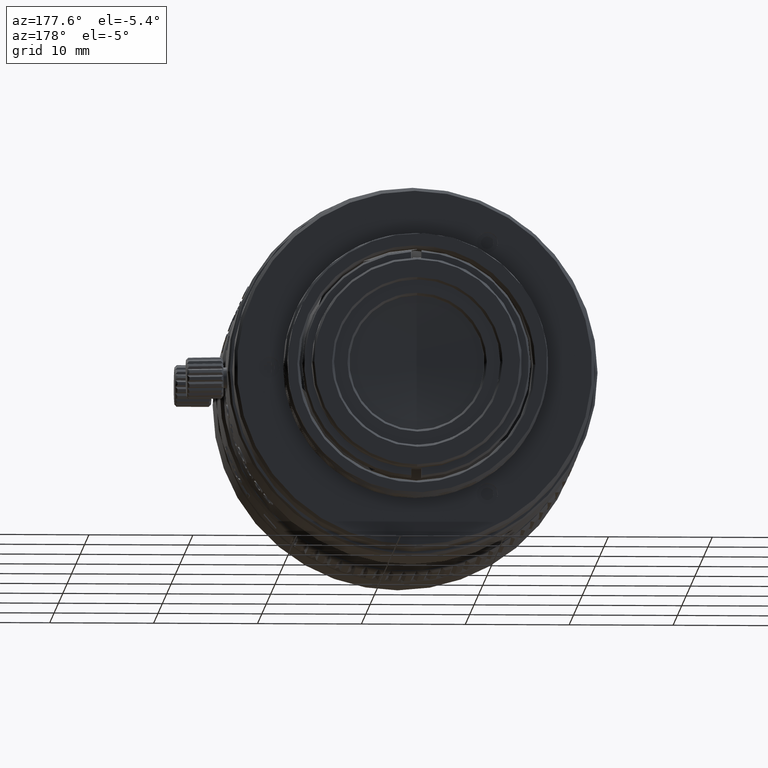
[diagram: clean part render]
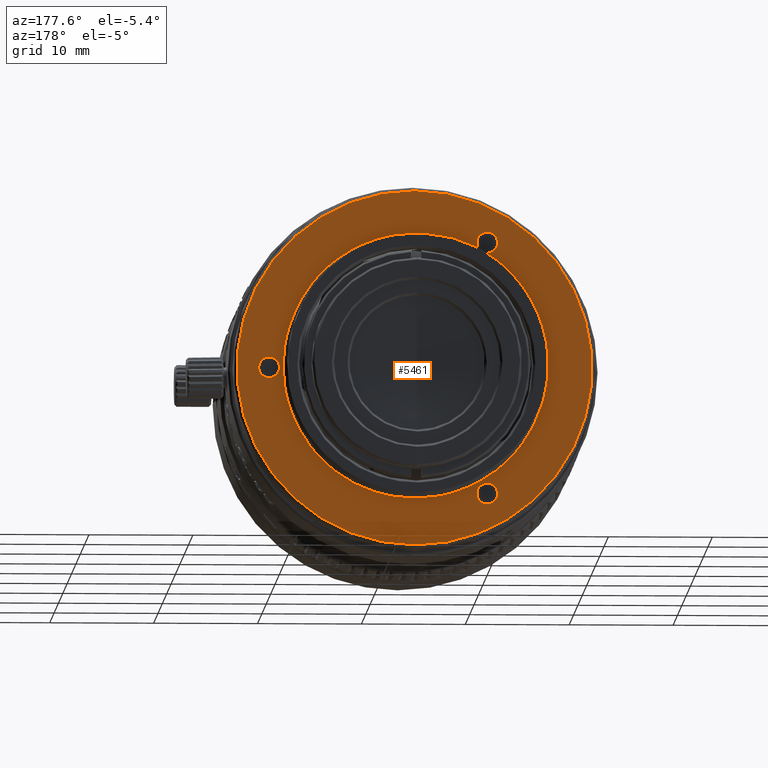
[diagram: same view with one face highlighted and labeled with its STEP entity id]
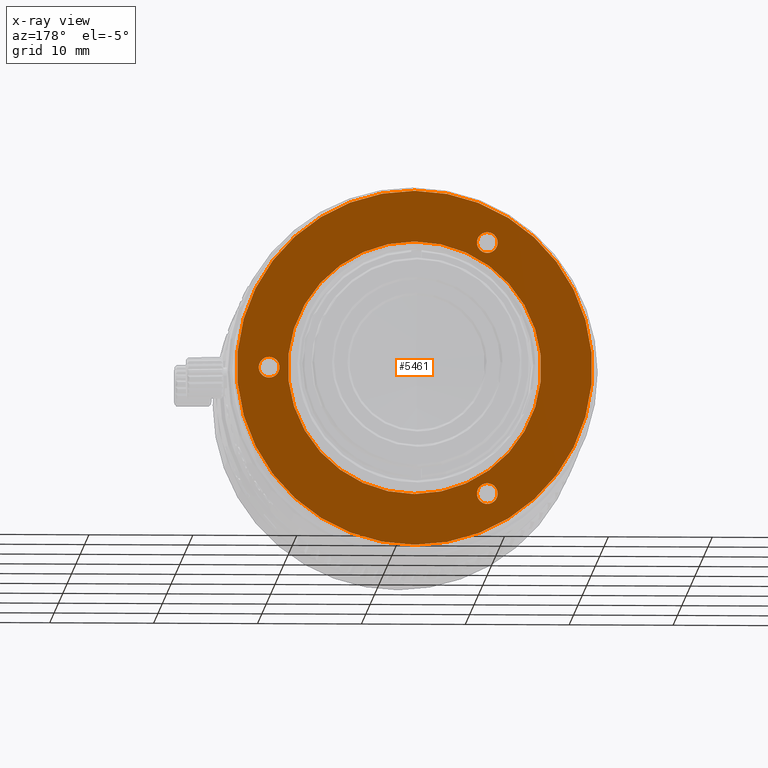
[diagram: x-ray of the same camera — body ghosted, the highlighted face saturated]
A machine part, auxiliary view. The second image highlights one B-rep face of the part: STEP entity #5461.
The next image is the same camera in x-ray: the body ghosted, the highlighted face saturated — about 0% of this face is hidden behind the body in this view.
In plain terms, the highlighted planar face has unit normal (-0, 1, 0).
Its self-contained STEP definition (entity closure, byte-faithful):
#207 = EDGE_LOOP ( 'NONE', ( #8205, #17840 ) ) ;
#568 = EDGE_CURVE ( 'NONE', #57915, #34554, #54980, .T. ) ;
#1448 = EDGE_CURVE ( 'NONE', #31349, #3882, #62458, .T. ) ;
#1925 = AXIS2_PLACEMENT_3D ( 'NONE', #9974, #37063, #58815 ) ;
#2626 = AXIS2_PLACEMENT_3D ( 'NONE', #6931, #23683, #29745 ) ;
#2935 = EDGE_CURVE ( 'NONE', #32318, #60528, #62080, .T. ) ;
#3882 = VERTEX_POINT ( 'NONE', #52392 ) ;
#4980 = FACE_BOUND ( 'NONE', #19485, .T. ) ;
#5202 = CIRCLE ( 'NONE', #62166, 17.09999737999697800 ) ;
#5461 = ADVANCED_FACE ( 'NONE', ( #39079, #4980, #23371, #15349, #64877 ), #64186, .T. ) ;
#5493 = EDGE_CURVE ( 'NONE', #9128, #59150, #18977, .T. ) ;
#6601 = ORIENTED_EDGE ( 'NONE', *, *, #62079, .T. ) ;
#6868 = CARTESIAN_POINT ( 'NONE',  ( 31.50001204310000347, 22.46401194791353007, -17.50001170252000193 ) ) ;
#6931 = CARTESIAN_POINT ( 'NONE',  ( 10.50001204309999991, 22.46401194791475220, -5.375656049534000225 ) ) ;
#7116 = ORIENTED_EDGE ( 'NONE', *, *, #50213, .T. ) ;
#7926 = DIRECTION ( 'NONE',  ( 0.000000000000000000, 0.000000000000000000, 1.000000000000000000 ) ) ;
#8205 = ORIENTED_EDGE ( 'NONE', *, *, #59036, .T. ) ;
#9128 = VERTEX_POINT ( 'NONE', #57183 ) ;
#9974 = CARTESIAN_POINT ( 'NONE',  ( -0.2962999720437000106, 22.46401194790999867, 0.2839882974833999318 ) ) ;
#11034 = AXIS2_PLACEMENT_3D ( 'NONE', #64528, #66534, #15699 ) ;
#12989 = CARTESIAN_POINT ( 'NONE',  ( 17.50001204309999991, 22.46401194790999867, -17.50001170252000193 ) ) ;
#13168 = EDGE_LOOP ( 'NONE', ( #6601, #25801 ) ) ;
#13698 = DIRECTION ( 'NONE',  ( 0.000000000000000000, 0.000000000000000000, -1.000000000000000000 ) ) ;
#15349 = FACE_BOUND ( 'NONE', #13168, .T. ) ;
#15699 = DIRECTION ( 'NONE',  ( 0.000000000000000000, 0.000000000000000000, 1.000000000000000000 ) ) ;
#17419 = CIRCLE ( 'NONE', #48162, 17.09999737999697800 ) ;
#17557 = AXIS2_PLACEMENT_3D ( 'NONE', #6868, #66762, #7926 ) ;
#17712 = DIRECTION ( 'NONE',  ( 0.000000000000000000, 0.000000000000000000, 1.000000000000000000 ) ) ;
#17840 = ORIENTED_EDGE ( 'NONE', *, *, #41626, .T. ) ;
#18977 = CIRCLE ( 'NONE', #11034, 1.000000000004819922 ) ;
#19485 = EDGE_LOOP ( 'NONE', ( #58531, #7116 ) ) ;
#23371 = FACE_BOUND ( 'NONE', #53404, .T. ) ;
#23683 = DIRECTION ( 'NONE',  ( -0.000000000000000000, -1.000000000000000000, -0.000000000000000000 ) ) ;
#24082 = DIRECTION ( 'NONE',  ( 0.000000000000000000, 0.000000000000000000, 1.000000000000000000 ) ) ;
#25769 = CARTESIAN_POINT ( 'NONE',  ( 10.50001204309999991, 22.46401194791475220, -30.62436735550481970 ) ) ;
#25801 = ORIENTED_EDGE ( 'NONE', *, *, #568, .T. ) ;
#27400 = DIRECTION ( 'NONE',  ( 0.000000000000000000, 0.000000000000000000, 1.000000000000000000 ) ) ;
#28323 = AXIS2_PLACEMENT_3D ( 'NONE', #43126, #70542, #27400 ) ;
#29745 = DIRECTION ( 'NONE',  ( 0.000000000000000000, 0.000000000000000000, 1.000000000000000000 ) ) ;
#30080 = AXIS2_PLACEMENT_3D ( 'NONE', #30814, #51869, #52566 ) ;
#30177 = DIRECTION ( 'NONE',  ( 0.000000000000000000, 0.000000000000000000, -1.000000000000000000 ) ) ;
#30814 = CARTESIAN_POINT ( 'NONE',  ( 10.50001204309999991, 22.46401194791475220, -29.62436735549999867 ) ) ;
#31244 = CARTESIAN_POINT ( 'NONE',  ( 17.50001204309999991, 22.46401194790999867, -17.50001170252000193 ) ) ;
#31349 = VERTEX_POINT ( 'NONE', #45286 ) ;
#31644 = DIRECTION ( 'NONE',  ( -0.000000000000000000, -1.000000000000000000, -0.000000000000000000 ) ) ;
#32318 = VERTEX_POINT ( 'NONE', #63743 ) ;
#34554 = VERTEX_POINT ( 'NONE', #43725 ) ;
#36525 = AXIS2_PLACEMENT_3D ( 'NONE', #39779, #51198, #24082 ) ;
#37063 = DIRECTION ( 'NONE',  ( -0.000000000000000000, 1.000000000000000000, 0.000000000000000000 ) ) ;
#37362 = ORIENTED_EDGE ( 'NONE', *, *, #1448, .T. ) ;
#39079 = FACE_OUTER_BOUND ( 'NONE', #207, .T. ) ;
#39680 = CIRCLE ( 'NONE', #28323, 1.000000000000486722 ) ;
#39779 = CARTESIAN_POINT ( 'NONE',  ( 17.50001204309999991, 22.46401194791493694, -17.50001170252000193 ) ) ;
#40118 = ORIENTED_EDGE ( 'NONE', *, *, #5493, .T. ) ;
#40783 = DIRECTION ( 'NONE',  ( -0.000000000000000000, 1.000000000000000000, -0.000000000000000000 ) ) ;
#41626 = EDGE_CURVE ( 'NONE', #50954, #57573, #5202, .T. ) ;
#42293 = DIRECTION ( 'NONE',  ( -0.000000000000000000, 1.000000000000000000, -0.000000000000000000 ) ) ;
#42597 = CARTESIAN_POINT ( 'NONE',  ( 17.50001204310000347, 22.46401194790999867, -0.4000143225230262667 ) ) ;
#43119 = AXIS2_PLACEMENT_3D ( 'NONE', #54084, #31644, #53043 ) ;
#43126 = CARTESIAN_POINT ( 'NONE',  ( 10.50001204309999991, 22.46401194791475220, -5.375656049534000225 ) ) ;
#43725 = CARTESIAN_POINT ( 'NONE',  ( 10.50001204309999991, 22.46401194791475220, -4.375656049533513503 ) ) ;
#44275 = ORIENTED_EDGE ( 'NONE', *, *, #66290, .T. ) ;
#44807 = CARTESIAN_POINT ( 'NONE',  ( 31.50001204310000347, 22.46401194791353007, -17.50001170252000193 ) ) ;
#45286 = CARTESIAN_POINT ( 'NONE',  ( 17.50001204309999991, 22.46401194791493694, -5.300011702520004420 ) ) ;
#45542 = ORIENTED_EDGE ( 'NONE', *, *, #49899, .T. ) ;
#45652 = EDGE_LOOP ( 'NONE', ( #37362, #44275 ) ) ;
#48162 = AXIS2_PLACEMENT_3D ( 'NONE', #12989, #40783, #13698 ) ;
#49899 = EDGE_CURVE ( 'NONE', #59150, #9128, #61946, .T. ) ;
#50213 = EDGE_CURVE ( 'NONE', #60528, #32318, #63116, .T. ) ;
#50668 = AXIS2_PLACEMENT_3D ( 'NONE', #44807, #66556, #17712 ) ;
#50954 = VERTEX_POINT ( 'NONE', #42597 ) ;
#51198 = DIRECTION ( 'NONE',  ( -0.000000000000000000, -1.000000000000000000, -0.000000000000000000 ) ) ;
#51869 = DIRECTION ( 'NONE',  ( -0.000000000000000000, -1.000000000000000000, -0.000000000000000000 ) ) ;
#52392 = CARTESIAN_POINT ( 'NONE',  ( 17.50001204309999991, 22.46401194791493694, -29.70001170252000122 ) ) ;
#52566 = DIRECTION ( 'NONE',  ( 0.000000000000000000, 0.000000000000000000, 1.000000000000000000 ) ) ;
#53043 = DIRECTION ( 'NONE',  ( 0.000000000000000000, 0.000000000000000000, 1.000000000000000000 ) ) ;
#53324 = CARTESIAN_POINT ( 'NONE',  ( 10.50001204309999991, 22.46401194791475220, -6.375656049534486947 ) ) ;
#53404 = EDGE_LOOP ( 'NONE', ( #40118, #45542 ) ) ;
#54084 = CARTESIAN_POINT ( 'NONE',  ( 17.50001204309999991, 22.46401194791493694, -17.50001170252000193 ) ) ;
#54980 = CIRCLE ( 'NONE', #2626, 1.000000000000486722 ) ;
#56418 = CARTESIAN_POINT ( 'NONE',  ( 31.50001204310000347, 22.46401194791353007, -18.50001170252000904 ) ) ;
#57183 = CARTESIAN_POINT ( 'NONE',  ( 10.50001204309999991, 22.46401194791475220, -28.62436735549518119 ) ) ;
#57573 = VERTEX_POINT ( 'NONE', #57687 ) ;
#57687 = CARTESIAN_POINT ( 'NONE',  ( 17.50001204309999991, 22.46401194790999867, -34.60000908251698348 ) ) ;
#57915 = VERTEX_POINT ( 'NONE', #53324 ) ;
#58531 = ORIENTED_EDGE ( 'NONE', *, *, #2935, .T. ) ;
#58815 = DIRECTION ( 'NONE',  ( 0.000000000000000000, -0.000000000000000000, 1.000000000000000000 ) ) ;
#59036 = EDGE_CURVE ( 'NONE', #57573, #50954, #17419, .T. ) ;
#59150 = VERTEX_POINT ( 'NONE', #25769 ) ;
#60528 = VERTEX_POINT ( 'NONE', #56418 ) ;
#61946 = CIRCLE ( 'NONE', #30080, 1.000000000004819922 ) ;
#62079 = EDGE_CURVE ( 'NONE', #34554, #57915, #39680, .T. ) ;
#62080 = CIRCLE ( 'NONE', #50668, 1.000000000000004441 ) ;
#62166 = AXIS2_PLACEMENT_3D ( 'NONE', #31244, #42293, #30177 ) ;
#62458 = CIRCLE ( 'NONE', #43119, 12.19999999999999929 ) ;
#63116 = CIRCLE ( 'NONE', #17557, 1.000000000000004441 ) ;
#63743 = CARTESIAN_POINT ( 'NONE',  ( 31.50001204310000347, 22.46401194791353007, -16.50001170251999838 ) ) ;
#64186 = PLANE ( 'NONE',  #1925 ) ;
#64528 = CARTESIAN_POINT ( 'NONE',  ( 10.50001204309999991, 22.46401194791475220, -29.62436735549999867 ) ) ;
#64877 = FACE_BOUND ( 'NONE', #45652, .T. ) ;
#65031 = CIRCLE ( 'NONE', #36525, 12.19999999999999929 ) ;
#66290 = EDGE_CURVE ( 'NONE', #3882, #31349, #65031, .T. ) ;
#66534 = DIRECTION ( 'NONE',  ( -0.000000000000000000, -1.000000000000000000, -0.000000000000000000 ) ) ;
#66556 = DIRECTION ( 'NONE',  ( -4.513898307157552501E-30, -1.000000000000000000, -1.734723475976799600E-15 ) ) ;
#66762 = DIRECTION ( 'NONE',  ( -4.513898307157552501E-30, -1.000000000000000000, -1.734723475976799600E-15 ) ) ;
#70542 = DIRECTION ( 'NONE',  ( -0.000000000000000000, -1.000000000000000000, -0.000000000000000000 ) ) ;